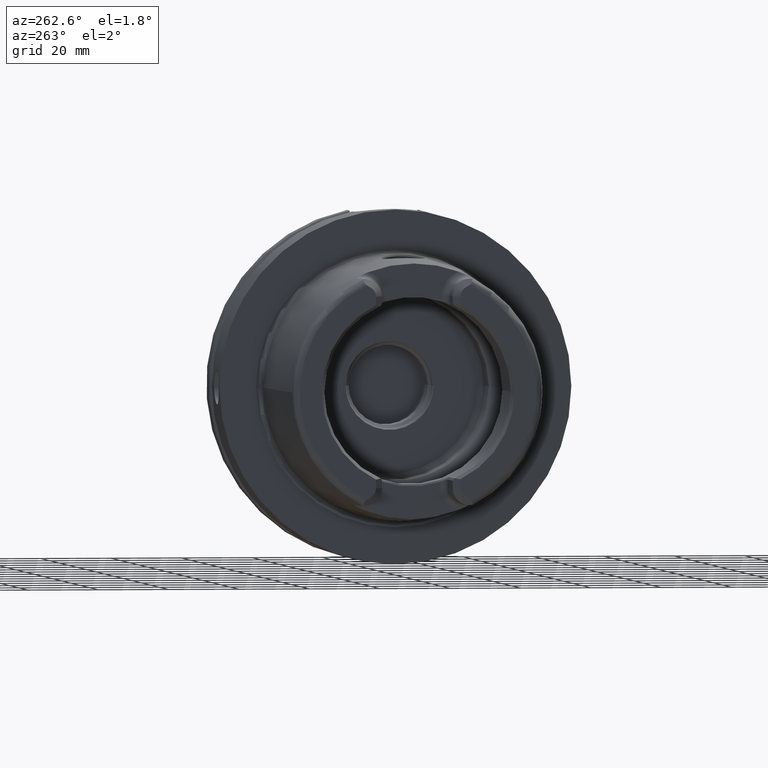
[diagram: clean part render]
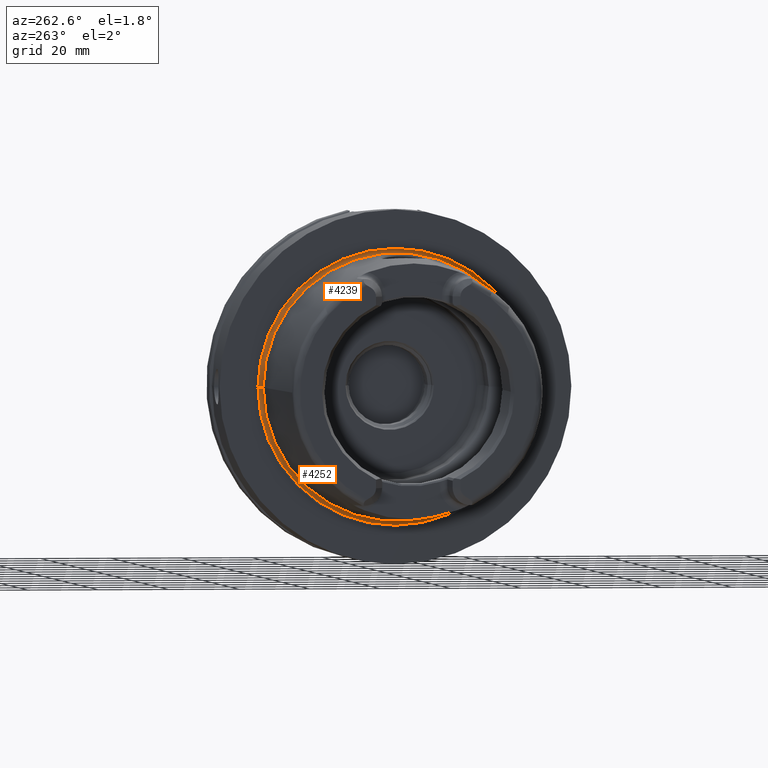
[diagram: same view with one multi-face feature highlighted, each face labeled with its STEP entity id]
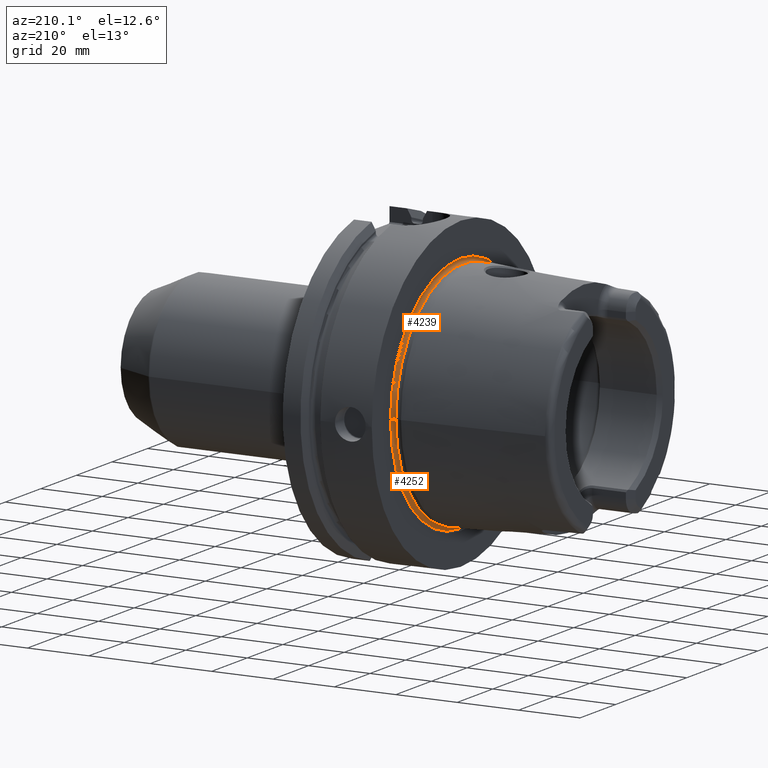
[diagram: same view with one multi-face feature highlighted, each face labeled with its STEP entity id]
A machine part, auxiliary view. The highlighted faces form ONE feature: a constant-radius fillet chain: 2 tangent blend faces with common blend radius 1 mm. The faces share edges in the B-rep.
A second angle (auxiliary view) of the same feature is appended — it is thin or edge-on in the first view.
Their STEP definitions:
[1] entity #4252 (Torus):
#867=CARTESIAN_POINT('',(-7.005712886803E-1,0.E0,0.E0));
#868=DIRECTION('',(-1.E0,0.E0,0.E0));
#869=DIRECTION('',(0.E0,1.E0,0.E0));
#870=AXIS2_PLACEMENT_3D('',#867,#868,#869);
#882=CARTESIAN_POINT('',(-7.005712886803E-1,3.868225E1,0.E0));
#883=DIRECTION('',(0.E0,0.E0,-1.E0));
#884=DIRECTION('',(9.304175679820E-1,3.665012267243E-1,0.E0));
#885=AXIS2_PLACEMENT_3D('',#882,#883,#884);
#887=CARTESIAN_POINT('',(-7.005712886803E-1,-3.868225E1,0.E0));
#888=DIRECTION('',(0.E0,0.E0,1.E0));
#889=DIRECTION('',(9.304175679820E-1,-3.665012267243E-1,0.E0));
#890=AXIS2_PLACEMENT_3D('',#887,#888,#889);
#892=CARTESIAN_POINT('',(2.298462793018E-1,0.E0,0.E0));
#893=DIRECTION('',(-1.E0,0.E0,0.E0));
#894=DIRECTION('',(0.E0,1.E0,0.E0));
#895=AXIS2_PLACEMENT_3D('',#892,#893,#894);
#2855=CARTESIAN_POINT('',(2.298462793018E-1,-3.904875122672E1,0.E0));
#2856=CARTESIAN_POINT('',(-7.005712886803E-1,-3.768225E1,0.E0));
#2857=VERTEX_POINT('',#2855);
#2858=VERTEX_POINT('',#2856);
#2863=CARTESIAN_POINT('',(2.298462793018E-1,3.904875122672E1,0.E0));
#2864=CARTESIAN_POINT('',(-7.005712886803E-1,3.768225E1,0.E0));
#2865=VERTEX_POINT('',#2863);
#2866=VERTEX_POINT('',#2864);
#4240=CARTESIAN_POINT('',(-7.005712886803E-1,0.E0,0.E0));
#4241=DIRECTION('',(-1.E0,0.E0,0.E0));
#4242=DIRECTION('',(0.E0,-1.E0,0.E0));
#4243=AXIS2_PLACEMENT_3D('',#4240,#4241,#4242);
#4244=TOROIDAL_SURFACE('',#4243,3.868225E1,1.E0);
#4245=ORIENTED_EDGE('',*,*,#4233,.T.);
#4246=ORIENTED_EDGE('',*,*,#4207,.T.);
#4247=ORIENTED_EDGE('',*,*,#4230,.F.);
#4249=ORIENTED_EDGE('',*,*,#4248,.F.);
#4250=EDGE_LOOP('',(#4245,#4246,#4247,#4249));
#4251=FACE_OUTER_BOUND('',#4250,.F.);
#4252=ADVANCED_FACE('',(#4251),#4244,.F.);
#871=CIRCLE('',#870,3.768225E1);
#886=CIRCLE('',#885,1.E0);
#891=CIRCLE('',#890,1.E0);
#896=CIRCLE('',#895,3.904875122672E1);
#4207=EDGE_CURVE('',#2866,#2858,#871,.T.);
#4230=EDGE_CURVE('',#2857,#2858,#891,.T.);
#4233=EDGE_CURVE('',#2865,#2866,#886,.T.);
#4248=EDGE_CURVE('',#2865,#2857,#896,.T.);
[2] entity #4239 (Torus):
#872=CARTESIAN_POINT('',(-7.005712886803E-1,0.E0,0.E0));
#873=DIRECTION('',(-1.E0,0.E0,0.E0));
#874=DIRECTION('',(0.E0,-1.E0,0.E0));
#875=AXIS2_PLACEMENT_3D('',#872,#873,#874);
#877=CARTESIAN_POINT('',(2.298462793018E-1,0.E0,0.E0));
#878=DIRECTION('',(-1.E0,0.E0,0.E0));
#879=DIRECTION('',(0.E0,-1.E0,0.E0));
#880=AXIS2_PLACEMENT_3D('',#877,#878,#879);
#882=CARTESIAN_POINT('',(-7.005712886803E-1,3.868225E1,0.E0));
#883=DIRECTION('',(0.E0,0.E0,-1.E0));
#884=DIRECTION('',(9.304175679820E-1,3.665012267243E-1,0.E0));
#885=AXIS2_PLACEMENT_3D('',#882,#883,#884);
#887=CARTESIAN_POINT('',(-7.005712886803E-1,-3.868225E1,0.E0));
#888=DIRECTION('',(0.E0,0.E0,1.E0));
#889=DIRECTION('',(9.304175679820E-1,-3.665012267243E-1,0.E0));
#890=AXIS2_PLACEMENT_3D('',#887,#888,#889);
#2855=CARTESIAN_POINT('',(2.298462793018E-1,-3.904875122672E1,0.E0));
#2856=CARTESIAN_POINT('',(-7.005712886803E-1,-3.768225E1,0.E0));
#2857=VERTEX_POINT('',#2855);
#2858=VERTEX_POINT('',#2856);
#2863=CARTESIAN_POINT('',(2.298462793018E-1,3.904875122672E1,0.E0));
#2864=CARTESIAN_POINT('',(-7.005712886803E-1,3.768225E1,0.E0));
#2865=VERTEX_POINT('',#2863);
#2866=VERTEX_POINT('',#2864);
#4225=CARTESIAN_POINT('',(-7.005712886803E-1,0.E0,0.E0));
#4226=DIRECTION('',(-1.E0,0.E0,0.E0));
#4227=DIRECTION('',(0.E0,1.E0,0.E0));
#4228=AXIS2_PLACEMENT_3D('',#4225,#4226,#4227);
#4229=TOROIDAL_SURFACE('',#4228,3.868225E1,1.E0);
#4231=ORIENTED_EDGE('',*,*,#4230,.T.);
#4232=ORIENTED_EDGE('',*,*,#4220,.T.);
#4234=ORIENTED_EDGE('',*,*,#4233,.F.);
#4236=ORIENTED_EDGE('',*,*,#4235,.F.);
#4237=EDGE_LOOP('',(#4231,#4232,#4234,#4236));
#4238=FACE_OUTER_BOUND('',#4237,.F.);
#4239=ADVANCED_FACE('',(#4238),#4229,.F.);
#876=CIRCLE('',#875,3.768225E1);
#881=CIRCLE('',#880,3.904875122672E1);
#886=CIRCLE('',#885,1.E0);
#891=CIRCLE('',#890,1.E0);
#4220=EDGE_CURVE('',#2858,#2866,#876,.T.);
#4230=EDGE_CURVE('',#2857,#2858,#891,.T.);
#4233=EDGE_CURVE('',#2865,#2866,#886,.T.);
#4235=EDGE_CURVE('',#2857,#2865,#881,.T.);